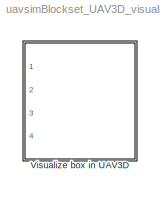
MODEL uavsimBlockset_UAV3D_visualizeBox
KIND library
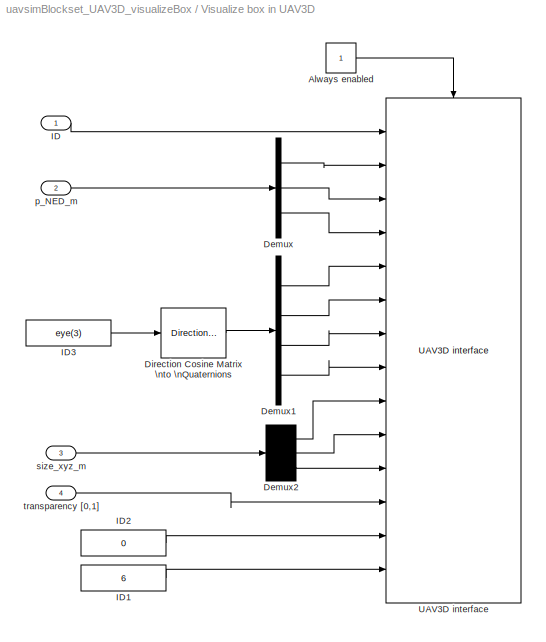
BLOCK [SubSystem] Visualize box in UAV3D
  Ports = [4]
  RequestExecContextInheritance = off
  SID = 4427
  SystemSampleTime = 1/10
  TreatAsAtomicUnit = on
  Variant = off
BLOCK [Constant] Visualize box in UAV3D/Always enabled
  SID = 4440
BLOCK [Demux] Visualize box in UAV3D/Demux
  DisplayOption = bar
  Outputs = 3
  Ports = [1, 3]
  SID = 4432
BLOCK [Demux] Visualize box in UAV3D/Demux1
  DisplayOption = bar
  Ports = [1, 4]
  SID = 4433
BLOCK [Demux] Visualize box in UAV3D/Demux2
  DisplayOption = bar
  Outputs = 3
  Ports = [1, 3]
  SID = 4434
BLOCK [Reference] Visualize box in UAV3D/Direction Cosine Matrix  \nto \nQuaternions  REF=aerolibtransform2/Direction Cosine Matrix \nto Quaternions
  Ports = [1, 1]
  SID = 4435
  SourceBlock = aerolibtransform2/Direction Cosine Matrix \nto Quaternions
  SourceType = DCM2Quaternion
BLOCK [Inport] Visualize box in UAV3D/ID
  IconDisplay = Port number
  SID = 4428
BLOCK [Constant] Visualize box in UAV3D/ID1
  SID = 4436
  Value = 6
BLOCK [Constant] Visualize box in UAV3D/ID2
  SID = 4437
  Value = 0
BLOCK [Constant] Visualize box in UAV3D/ID3
  SID = 4438
  Value = eye(3)
BLOCK [Reference] Visualize box in UAV3D/UAV3D interface  REF=uavsimBlockset_UAV3DInterface/UAV3D interface
  Ports = [14, 0, 1]
  SID = 4439
  SourceBlock = uavsimBlockset_UAV3DInterface/UAV3D interface
  ip = 'localhost'
  udpport = 4445
BLOCK [Inport] Visualize box in UAV3D/p_NED_m
  IconDisplay = Port number
  Port = 2
  SID = 4429
BLOCK [Inport] Visualize box in UAV3D/size_xyz_m
  IconDisplay = Port number
  Port = 3
  SID = 4430
BLOCK [Inport] Visualize box in UAV3D/transparency [0,1]
  IconDisplay = Port number
  Port = 4
  SID = 4431
LINE Visualize box in UAV3D/Always enabled:1 -> Visualize box in UAV3D/UAV3D interface:enable
LINE Visualize box in UAV3D/Demux1:1 -> Visualize box in UAV3D/UAV3D interface:5
LINE Visualize box in UAV3D/Demux1:2 -> Visualize box in UAV3D/UAV3D interface:6
LINE Visualize box in UAV3D/Demux1:3 -> Visualize box in UAV3D/UAV3D interface:7
LINE Visualize box in UAV3D/Demux1:4 -> Visualize box in UAV3D/UAV3D interface:8
LINE Visualize box in UAV3D/Demux2:1 -> Visualize box in UAV3D/UAV3D interface:9
LINE Visualize box in UAV3D/Demux2:2 -> Visualize box in UAV3D/UAV3D interface:10
LINE Visualize box in UAV3D/Demux2:3 -> Visualize box in UAV3D/UAV3D interface:11
LINE Visualize box in UAV3D/Demux:1 -> Visualize box in UAV3D/UAV3D interface:2
LINE Visualize box in UAV3D/Demux:2 -> Visualize box in UAV3D/UAV3D interface:3
LINE Visualize box in UAV3D/Demux:3 -> Visualize box in UAV3D/UAV3D interface:4
LINE Visualize box in UAV3D/Direction Cosine Matrix  \nto \nQuaternions:1 -> Visualize box in UAV3D/Demux1:1
LINE Visualize box in UAV3D/ID1:1 -> Visualize box in UAV3D/UAV3D interface:14
LINE Visualize box in UAV3D/ID2:1 -> Visualize box in UAV3D/UAV3D interface:13
LINE Visualize box in UAV3D/ID3:1 -> Visualize box in UAV3D/Direction Cosine Matrix  \nto \nQuaternions:1
LINE Visualize box in UAV3D/ID:1 -> Visualize box in UAV3D/UAV3D interface:1
LINE Visualize box in UAV3D/p_NED_m:1 -> Visualize box in UAV3D/Demux:1
LINE Visualize box in UAV3D/size_xyz_m:1 -> Visualize box in UAV3D/Demux2:1
LINE Visualize box in UAV3D/transparency [0,1]:1 -> Visualize box in UAV3D/UAV3D interface:12
